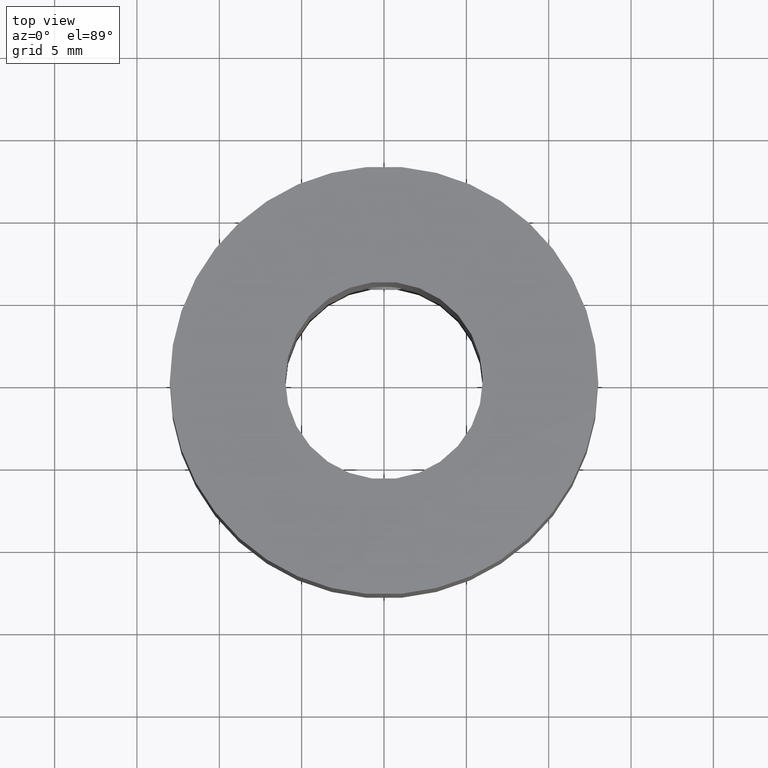
[diagram: clean part render]
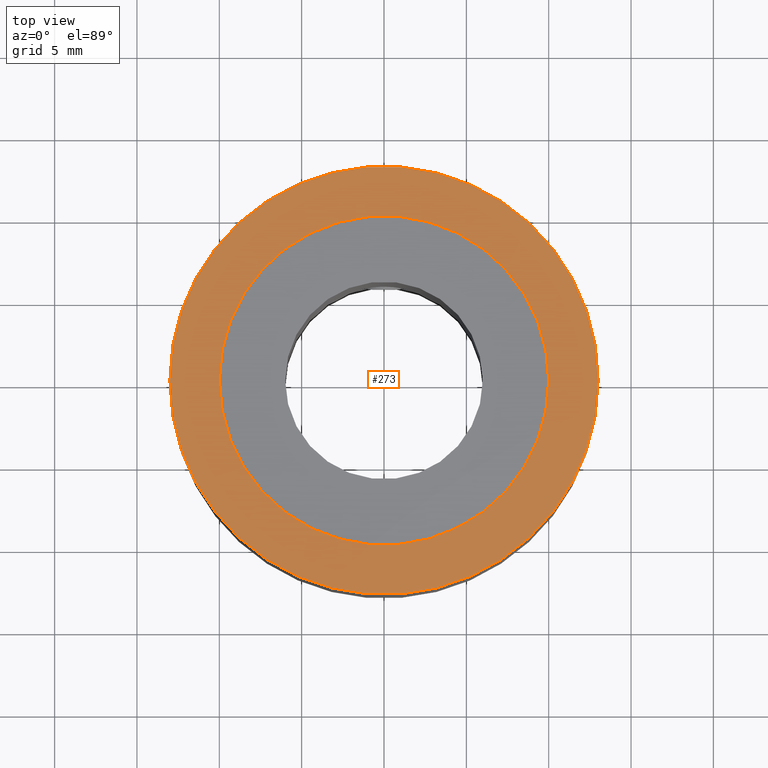
[diagram: same view with one face highlighted and labeled with its STEP entity id]
A machine part, top view. The second image highlights one B-rep face of the part: STEP entity #273.
In plain terms, the highlighted planar face has unit normal (0, 0, 1).
Its self-contained STEP definition (entity closure, byte-faithful):
#273 = ADVANCED_FACE( '', ( #338, #339 ), #340, .T. );
#338 = FACE_OUTER_BOUND( '', #430, .T. );
#339 = FACE_BOUND( '', #431, .T. );
#340 = PLANE( '', #432 );
#430 = EDGE_LOOP( '', ( #542 ) );
#431 = EDGE_LOOP( '', ( #543 ) );
#432 = AXIS2_PLACEMENT_3D( '', #544, #545, #546 );
#542 = ORIENTED_EDGE( '', *, *, #715, .T. );
#543 = ORIENTED_EDGE( '', *, *, #717, .F. );
#544 = CARTESIAN_POINT( '', ( 0.000000000000000, 0.000000000000000, 0.000000000000000 ) );
#545 = DIRECTION( '', ( 0.000000000000000, 0.000000000000000, 1.00000000000000 ) );
#546 = DIRECTION( '', ( 1.00000000000000, 0.000000000000000, 0.000000000000000 ) );
#715 = EDGE_CURVE( '', #784, #784, #785, .T. );
#717 = EDGE_CURVE( '', #788, #788, #789, .T. );
#784 = VERTEX_POINT( '', #1088 );
#785 = CIRCLE( '', #1089, 13.0000000000000 );
#788 = VERTEX_POINT( '', #1092 );
#789 = CIRCLE( '', #1093, 10.0000000000000 );
#1088 = CARTESIAN_POINT( '', ( 13.0000000000000, 0.000000000000000, 0.000000000000000 ) );
#1089 = AXIS2_PLACEMENT_3D( '', #1271, #1272, #1273 );
#1092 = CARTESIAN_POINT( '', ( 10.0000000000000, 0.000000000000000, 0.000000000000000 ) );
#1093 = AXIS2_PLACEMENT_3D( '', #1277, #1278, #1279 );
#1271 = CARTESIAN_POINT( '', ( 0.000000000000000, 0.000000000000000, 0.000000000000000 ) );
#1272 = DIRECTION( '', ( 0.000000000000000, 0.000000000000000, 1.00000000000000 ) );
#1273 = DIRECTION( '', ( 1.00000000000000, 0.000000000000000, 0.000000000000000 ) );
#1277 = CARTESIAN_POINT( '', ( 0.000000000000000, 0.000000000000000, 0.000000000000000 ) );
#1278 = DIRECTION( '', ( 0.000000000000000, 0.000000000000000, 1.00000000000000 ) );
#1279 = DIRECTION( '', ( 1.00000000000000, 0.000000000000000, 0.000000000000000 ) );